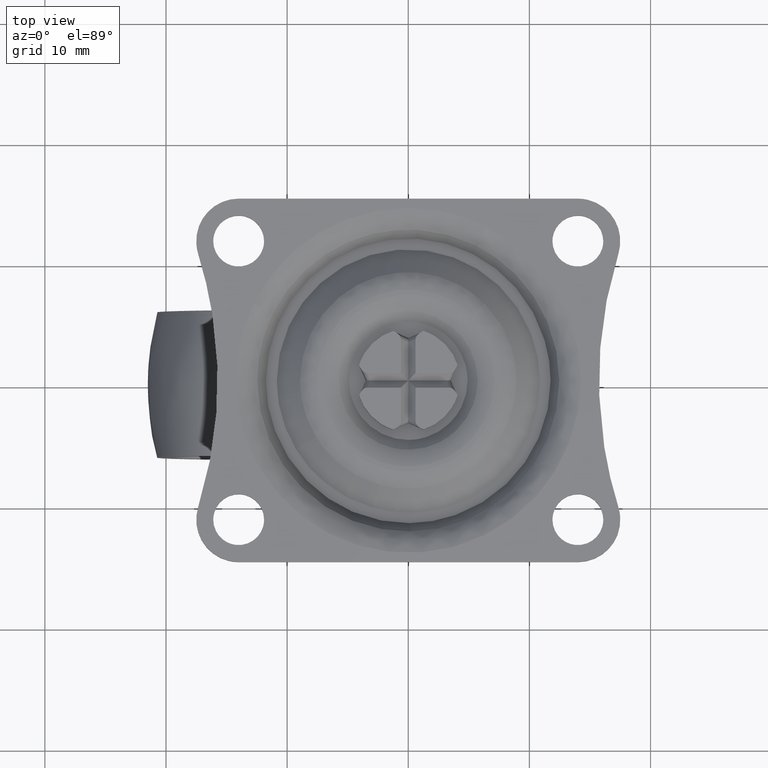
[diagram: clean part render]
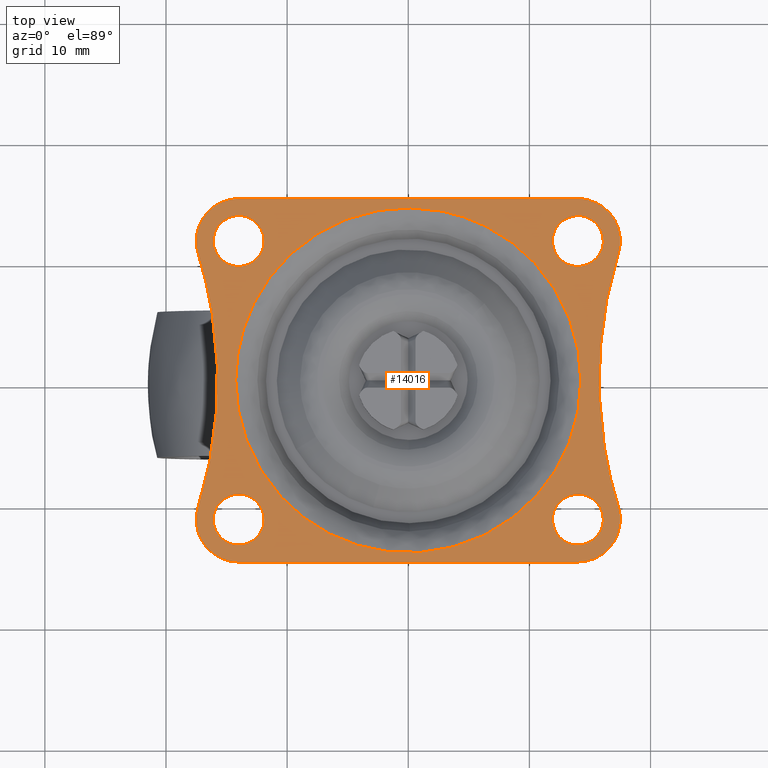
[diagram: same view with one face highlighted and labeled with its STEP entity id]
A machine part, top view. The second image highlights one B-rep face of the part: STEP entity #14016.
In plain terms, the highlighted face is a freeform B-spline surface patch.
Its self-contained STEP definition (entity closure, byte-faithful):
#8242=CARTESIAN_POINT('',(-14.247871892822980,9.414679994641505,1.419714E-017));
#8243=VERTEX_POINT('',#8242);
#8249=CARTESIAN_POINT('',(-11.900000000000000,11.500000000000000,0.0));
#8250=VERTEX_POINT('',#8249);
#8251=CARTESIAN_POINT('',(-14.247871892822983,9.414679994641505,1.419714E-017));
#8252=CARTESIAN_POINT('',(-14.124370651313258,9.400000000000002,0.0));
#8253=CARTESIAN_POINT('',(-14.0,9.400000000000000,0.0));
#8254=CARTESIAN_POINT('',(-11.900000000000000,9.400000000000000,0.0));
#8255=CARTESIAN_POINT('',(-11.900000000000000,11.500000000000000,0.0));
#8263=(BOUNDED_CURVE()B_SPLINE_CURVE(2,(#8251,#8252,#8253,#8254,#8255),.UNSPECIFIED.,.F.,.U.)B_SPLINE_CURVE_WITH_KNOTS((3,2,3),(0.229562473508547,0.250000000000000,0.500000000000000),.UNSPECIFIED.)CURVE()GEOMETRIC_REPRESENTATION_ITEM()RATIONAL_B_SPLINE_CURVE((0.956026754173975,0.976055948325333,1.0,0.707106781186548,1.0))REPRESENTATION_ITEM(''));
#8264=EDGE_CURVE('',#8243,#8250,#8263,.T.);
#8266=CARTESIAN_POINT('',(-13.871798066932740,13.596083076683231,1.040834E-017));
#8267=VERTEX_POINT('',#8266);
#8268=CARTESIAN_POINT('',(-11.900000000000000,11.500000000000000,0.0));
#8269=CARTESIAN_POINT('',(-11.900000000000000,13.475482740418766,0.0));
#8270=CARTESIAN_POINT('',(-13.871798066932746,13.596083076683225,1.040834E-017));
#8278=(BOUNDED_CURVE()B_SPLINE_CURVE(2,(#8268,#8269,#8270),.UNSPECIFIED.,.F.,.U.)B_SPLINE_CURVE_WITH_KNOTS((3,3),(0.500000000000000,0.739332962234715),.UNSPECIFIED.)CURVE()GEOMETRIC_REPRESENTATION_ITEM()RATIONAL_B_SPLINE_CURVE((1.0,0.719603993291663,0.976072041657657))REPRESENTATION_ITEM(''));
#8279=EDGE_CURVE('',#8250,#8267,#8278,.T.);
#8353=CARTESIAN_POINT('',(-16.100000000000001,11.500000000000000,0.0));
#8354=VERTEX_POINT('',#8353);
#8355=CARTESIAN_POINT('',(-13.871798066932742,13.596083076683222,1.040834E-017));
#8356=CARTESIAN_POINT('',(-13.935839197028780,13.600000000000000,0.0));
#8357=CARTESIAN_POINT('',(-14.0,13.600000000000000,0.0));
#8358=CARTESIAN_POINT('',(-16.100000000000005,13.600000000000003,0.0));
#8359=CARTESIAN_POINT('',(-16.100000000000001,11.500000000000000,0.0));
#8367=(BOUNDED_CURVE()B_SPLINE_CURVE(2,(#8355,#8356,#8357,#8358,#8359),.UNSPECIFIED.,.F.,.U.)B_SPLINE_CURVE_WITH_KNOTS((3,2,3),(0.739332962234715,0.750000000000000,1.0),.UNSPECIFIED.)CURVE()GEOMETRIC_REPRESENTATION_ITEM()RATIONAL_B_SPLINE_CURVE((0.976072041657656,0.987502787894884,1.0,0.707106781186548,1.0))REPRESENTATION_ITEM(''));
#8368=EDGE_CURVE('',#8267,#8354,#8367,.T.);
#8370=CARTESIAN_POINT('',(-16.100000000000001,11.500000000000000,0.0));
#8371=CARTESIAN_POINT('',(-16.100000000000001,9.634833495581004,0.0));
#8372=CARTESIAN_POINT('',(-14.247871892822983,9.414679994641505,1.419714E-017));
#8380=(BOUNDED_CURVE()B_SPLINE_CURVE(2,(#8370,#8371,#8372),.UNSPECIFIED.,.F.,.U.)B_SPLINE_CURVE_WITH_KNOTS((3,3),(0.0,0.229562473508547),.UNSPECIFIED.)CURVE()GEOMETRIC_REPRESENTATION_ITEM()RATIONAL_B_SPLINE_CURVE((1.0,0.731050832861215,0.956026754173975))REPRESENTATION_ITEM(''));
#8381=EDGE_CURVE('',#8354,#8243,#8380,.T.);
#8428=CARTESIAN_POINT('',(13.752128107177020,9.414679994641507,1.419714E-017));
#8429=VERTEX_POINT('',#8428);
#8435=CARTESIAN_POINT('',(16.100000000000001,11.500000000000000,0.0));
#8436=VERTEX_POINT('',#8435);
#8437=CARTESIAN_POINT('',(13.752128107177018,9.414679994641507,1.419714E-017));
#8438=CARTESIAN_POINT('',(13.875629348686745,9.400000000000000,0.0));
#8439=CARTESIAN_POINT('',(14.0,9.400000000000000,0.0));
#8440=CARTESIAN_POINT('',(16.100000000000005,9.400000000000000,0.0));
#8441=CARTESIAN_POINT('',(16.100000000000001,11.500000000000000,0.0));
#8449=(BOUNDED_CURVE()B_SPLINE_CURVE(2,(#8437,#8438,#8439,#8440,#8441),.UNSPECIFIED.,.F.,.U.)B_SPLINE_CURVE_WITH_KNOTS((3,2,3),(0.229562473508547,0.250000000000000,0.500000000000000),.UNSPECIFIED.)CURVE()GEOMETRIC_REPRESENTATION_ITEM()RATIONAL_B_SPLINE_CURVE((0.956026754173975,0.976055948325333,1.0,0.707106781186548,1.0))REPRESENTATION_ITEM(''));
#8450=EDGE_CURVE('',#8429,#8436,#8449,.T.);
#8452=CARTESIAN_POINT('',(14.128201933067260,13.596083076683231,1.040834E-017));
#8453=VERTEX_POINT('',#8452);
#8454=CARTESIAN_POINT('',(16.100000000000001,11.500000000000000,0.0));
#8455=CARTESIAN_POINT('',(16.099999999999998,13.475482740418766,0.0));
#8456=CARTESIAN_POINT('',(14.128201933067258,13.596083076683225,1.040834E-017));
#8464=(BOUNDED_CURVE()B_SPLINE_CURVE(2,(#8454,#8455,#8456),.UNSPECIFIED.,.F.,.U.)B_SPLINE_CURVE_WITH_KNOTS((3,3),(0.500000000000000,0.739332962234715),.UNSPECIFIED.)CURVE()GEOMETRIC_REPRESENTATION_ITEM()RATIONAL_B_SPLINE_CURVE((1.0,0.719603993291663,0.976072041657657))REPRESENTATION_ITEM(''));
#8465=EDGE_CURVE('',#8436,#8453,#8464,.T.);
#8539=CARTESIAN_POINT('',(11.900000000000000,11.500000000000000,0.0));
#8540=VERTEX_POINT('',#8539);
#8541=CARTESIAN_POINT('',(14.128201933067260,13.596083076683227,1.040834E-017));
#8542=CARTESIAN_POINT('',(14.064160802971225,13.600000000000001,0.0));
#8543=CARTESIAN_POINT('',(14.0,13.600000000000000,0.0));
#8544=CARTESIAN_POINT('',(11.900000000000000,13.600000000000003,0.0));
#8545=CARTESIAN_POINT('',(11.900000000000000,11.500000000000000,0.0));
#8553=(BOUNDED_CURVE()B_SPLINE_CURVE(2,(#8541,#8542,#8543,#8544,#8545),.UNSPECIFIED.,.F.,.U.)B_SPLINE_CURVE_WITH_KNOTS((3,2,3),(0.739332962234715,0.750000000000000,1.0),.UNSPECIFIED.)CURVE()GEOMETRIC_REPRESENTATION_ITEM()RATIONAL_B_SPLINE_CURVE((0.976072041657656,0.987502787894884,1.0,0.707106781186548,1.0))REPRESENTATION_ITEM(''));
#8554=EDGE_CURVE('',#8453,#8540,#8553,.T.);
#8556=CARTESIAN_POINT('',(11.900000000000000,11.500000000000000,0.0));
#8557=CARTESIAN_POINT('',(11.900000000000000,9.634833495581006,0.0));
#8558=CARTESIAN_POINT('',(13.752128107177018,9.414679994641507,1.419714E-017));
#8566=(BOUNDED_CURVE()B_SPLINE_CURVE(2,(#8556,#8557,#8558),.UNSPECIFIED.,.F.,.U.)B_SPLINE_CURVE_WITH_KNOTS((3,3),(0.0,0.229562473508547),.UNSPECIFIED.)CURVE()GEOMETRIC_REPRESENTATION_ITEM()RATIONAL_B_SPLINE_CURVE((1.0,0.731050832861215,0.956026754173975))REPRESENTATION_ITEM(''));
#8567=EDGE_CURVE('',#8540,#8429,#8566,.T.);
#8614=CARTESIAN_POINT('',(13.752128107177020,-13.585320005358501,1.419714E-017));
#8615=VERTEX_POINT('',#8614);
#8621=CARTESIAN_POINT('',(16.100000000000001,-11.500000000000000,0.0));
#8622=VERTEX_POINT('',#8621);
#8623=CARTESIAN_POINT('',(13.752128107177027,-13.585320005358499,1.419714E-017));
#8624=CARTESIAN_POINT('',(13.875629348686743,-13.600000000000005,0.0));
#8625=CARTESIAN_POINT('',(14.0,-13.600000000000000,0.0));
#8626=CARTESIAN_POINT('',(16.100000000000005,-13.600000000000003,0.0));
#8627=CARTESIAN_POINT('',(16.100000000000001,-11.500000000000000,0.0));
#8635=(BOUNDED_CURVE()B_SPLINE_CURVE(2,(#8623,#8624,#8625,#8626,#8627),.UNSPECIFIED.,.F.,.U.)B_SPLINE_CURVE_WITH_KNOTS((3,2,3),(0.229562473508547,0.250000000000000,0.500000000000000),.UNSPECIFIED.)CURVE()GEOMETRIC_REPRESENTATION_ITEM()RATIONAL_B_SPLINE_CURVE((0.956026754173975,0.976055948325333,1.0,0.707106781186548,1.0))REPRESENTATION_ITEM(''));
#8636=EDGE_CURVE('',#8615,#8622,#8635,.T.);
#8638=CARTESIAN_POINT('',(14.128201933067260,-9.403916923316775,1.040834E-017));
#8639=VERTEX_POINT('',#8638);
#8640=CARTESIAN_POINT('',(16.100000000000001,-11.500000000000000,0.0));
#8641=CARTESIAN_POINT('',(16.099999999999998,-9.524517259581238,0.0));
#8642=CARTESIAN_POINT('',(14.128201933067258,-9.403916923316775,1.040834E-017));
#8650=(BOUNDED_CURVE()B_SPLINE_CURVE(2,(#8640,#8641,#8642),.UNSPECIFIED.,.F.,.U.)B_SPLINE_CURVE_WITH_KNOTS((3,3),(0.500000000000000,0.739332962234715),.UNSPECIFIED.)CURVE()GEOMETRIC_REPRESENTATION_ITEM()RATIONAL_B_SPLINE_CURVE((1.0,0.719603993291663,0.976072041657657))REPRESENTATION_ITEM(''));
#8651=EDGE_CURVE('',#8622,#8639,#8650,.T.);
#8725=CARTESIAN_POINT('',(11.900000000000000,-11.500000000000000,0.0));
#8726=VERTEX_POINT('',#8725);
#8727=CARTESIAN_POINT('',(14.128201933067260,-9.403916923316775,1.040834E-017));
#8728=CARTESIAN_POINT('',(14.064160802971225,-9.400000000000000,0.0));
#8729=CARTESIAN_POINT('',(14.0,-9.400000000000000,0.0));
#8730=CARTESIAN_POINT('',(11.900000000000000,-9.400000000000000,0.0));
#8731=CARTESIAN_POINT('',(11.900000000000000,-11.500000000000000,0.0));
#8739=(BOUNDED_CURVE()B_SPLINE_CURVE(2,(#8727,#8728,#8729,#8730,#8731),.UNSPECIFIED.,.F.,.U.)B_SPLINE_CURVE_WITH_KNOTS((3,2,3),(0.739332962234715,0.750000000000000,1.0),.UNSPECIFIED.)CURVE()GEOMETRIC_REPRESENTATION_ITEM()RATIONAL_B_SPLINE_CURVE((0.976072041657656,0.987502787894884,1.0,0.707106781186548,1.0))REPRESENTATION_ITEM(''));
#8740=EDGE_CURVE('',#8639,#8726,#8739,.T.);
#8742=CARTESIAN_POINT('',(11.900000000000000,-11.500000000000000,0.0));
#8743=CARTESIAN_POINT('',(11.900000000000000,-13.365166504418998,0.0));
#8744=CARTESIAN_POINT('',(13.752128107177018,-13.585320005358501,1.419714E-017));
#8752=(BOUNDED_CURVE()B_SPLINE_CURVE(2,(#8742,#8743,#8744),.UNSPECIFIED.,.F.,.U.)B_SPLINE_CURVE_WITH_KNOTS((3,3),(0.0,0.229562473508547),.UNSPECIFIED.)CURVE()GEOMETRIC_REPRESENTATION_ITEM()RATIONAL_B_SPLINE_CURVE((1.0,0.731050832861215,0.956026754173975))REPRESENTATION_ITEM(''));
#8753=EDGE_CURVE('',#8726,#8615,#8752,.T.);
#8990=CARTESIAN_POINT('',(-14.247871892822980,-13.585320005358490,1.419714E-017));
#8991=VERTEX_POINT('',#8990);
#8997=CARTESIAN_POINT('',(-11.900000000000000,-11.500000000000000,0.0));
#8998=VERTEX_POINT('',#8997);
#8999=CARTESIAN_POINT('',(-14.247871892822983,-13.585320005358490,1.419714E-017));
#9000=CARTESIAN_POINT('',(-14.124370651313258,-13.600000000000007,0.0));
#9001=CARTESIAN_POINT('',(-14.0,-13.600000000000000,0.0));
#9002=CARTESIAN_POINT('',(-11.900000000000000,-13.600000000000003,0.0));
#9003=CARTESIAN_POINT('',(-11.900000000000000,-11.500000000000000,0.0));
#9011=(BOUNDED_CURVE()B_SPLINE_CURVE(2,(#8999,#9000,#9001,#9002,#9003),.UNSPECIFIED.,.F.,.U.)B_SPLINE_CURVE_WITH_KNOTS((3,2,3),(0.229562473508547,0.250000000000000,0.500000000000000),.UNSPECIFIED.)CURVE()GEOMETRIC_REPRESENTATION_ITEM()RATIONAL_B_SPLINE_CURVE((0.956026754173975,0.976055948325333,1.0,0.707106781186548,1.0))REPRESENTATION_ITEM(''));
#9012=EDGE_CURVE('',#8991,#8998,#9011,.T.);
#9014=CARTESIAN_POINT('',(-13.871798066932740,-9.403916923316775,1.040834E-017));
#9015=VERTEX_POINT('',#9014);
#9016=CARTESIAN_POINT('',(-11.900000000000000,-11.500000000000000,0.0));
#9017=CARTESIAN_POINT('',(-11.900000000000000,-9.524517259581238,0.0));
#9018=CARTESIAN_POINT('',(-13.871798066932746,-9.403916923316775,1.040834E-017));
#9026=(BOUNDED_CURVE()B_SPLINE_CURVE(2,(#9016,#9017,#9018),.UNSPECIFIED.,.F.,.U.)B_SPLINE_CURVE_WITH_KNOTS((3,3),(0.500000000000000,0.739332962234715),.UNSPECIFIED.)CURVE()GEOMETRIC_REPRESENTATION_ITEM()RATIONAL_B_SPLINE_CURVE((1.0,0.719603993291663,0.976072041657657))REPRESENTATION_ITEM(''));
#9027=EDGE_CURVE('',#8998,#9015,#9026,.T.);
#9101=CARTESIAN_POINT('',(-16.100000000000001,-11.500000000000000,0.0));
#9102=VERTEX_POINT('',#9101);
#9103=CARTESIAN_POINT('',(-13.871798066932739,-9.403916923316775,1.040834E-017));
#9104=CARTESIAN_POINT('',(-13.935839197028786,-9.400000000000000,0.0));
#9105=CARTESIAN_POINT('',(-14.0,-9.400000000000000,0.0));
#9106=CARTESIAN_POINT('',(-16.100000000000005,-9.400000000000000,0.0));
#9107=CARTESIAN_POINT('',(-16.100000000000001,-11.500000000000000,0.0));
#9115=(BOUNDED_CURVE()B_SPLINE_CURVE(2,(#9103,#9104,#9105,#9106,#9107),.UNSPECIFIED.,.F.,.U.)B_SPLINE_CURVE_WITH_KNOTS((3,2,3),(0.739332962234715,0.750000000000000,1.0),.UNSPECIFIED.)CURVE()GEOMETRIC_REPRESENTATION_ITEM()RATIONAL_B_SPLINE_CURVE((0.976072041657656,0.987502787894884,1.0,0.707106781186548,1.0))REPRESENTATION_ITEM(''));
#9116=EDGE_CURVE('',#9015,#9102,#9115,.T.);
#9118=CARTESIAN_POINT('',(-16.100000000000001,-11.500000000000000,0.0));
#9119=CARTESIAN_POINT('',(-16.100000000000001,-13.365166504418998,0.0));
#9120=CARTESIAN_POINT('',(-14.247871892822983,-13.585320005358490,1.419714E-017));
#9128=(BOUNDED_CURVE()B_SPLINE_CURVE(2,(#9118,#9119,#9120),.UNSPECIFIED.,.F.,.U.)B_SPLINE_CURVE_WITH_KNOTS((3,3),(0.0,0.229562473508547),.UNSPECIFIED.)CURVE()GEOMETRIC_REPRESENTATION_ITEM()RATIONAL_B_SPLINE_CURVE((1.0,0.731050832861215,0.956026754173975))REPRESENTATION_ITEM(''));
#9129=EDGE_CURVE('',#9102,#8991,#9128,.T.);
#12411=CARTESIAN_POINT('',(-12.729783475695941,6.385720219210334,-3.676283E-016));
#12412=VERTEX_POINT('',#12411);
#12426=CARTESIAN_POINT('',(-14.241657560078259,0.0,0.0));
#12427=VERTEX_POINT('',#12426);
#12428=CARTESIAN_POINT('',(-14.241657560078259,0.0,0.0));
#12429=CARTESIAN_POINT('',(-14.241657560078258,3.371834694195156,0.0));
#12430=CARTESIAN_POINT('',(-12.729783475695941,6.385720219210334,-3.676283E-016));
#12438=(BOUNDED_CURVE()B_SPLINE_CURVE(2,(#12428,#12429,#12430),.UNSPECIFIED.,.F.,.U.)B_SPLINE_CURVE_WITH_KNOTS((3,3),(0.0,0.076230937884445),.UNSPECIFIED.)CURVE()GEOMETRIC_REPRESENTATION_ITEM()RATIONAL_B_SPLINE_CURVE((1.0,0.910689900919426,0.875845342762571))REPRESENTATION_ITEM(''));
#12439=EDGE_CURVE('',#12427,#12412,#12438,.T.);
#12441=CARTESIAN_POINT('',(14.241657560078259,0.0,0.0));
#12442=VERTEX_POINT('',#12441);
#12443=CARTESIAN_POINT('',(14.241657560078259,0.0,0.0));
#12444=CARTESIAN_POINT('',(14.241657560078265,-14.241657560078265,0.0));
#12445=CARTESIAN_POINT('',(0.0,-14.241657560078259,0.0));
#12446=CARTESIAN_POINT('',(-14.241657560078265,-14.241657560078265,0.0));
#12447=CARTESIAN_POINT('',(-14.241657560078259,0.0,0.0));
#12455=(BOUNDED_CURVE()B_SPLINE_CURVE(2,(#12443,#12444,#12445,#12446,#12447),.UNSPECIFIED.,.F.,.U.)B_SPLINE_CURVE_WITH_KNOTS((3,2,3),(0.500000000000000,0.750000000000000,1.0),.UNSPECIFIED.)CURVE()GEOMETRIC_REPRESENTATION_ITEM()RATIONAL_B_SPLINE_CURVE((1.0,0.707106781186547,1.0,0.707106781186547,1.0))REPRESENTATION_ITEM(''));
#12456=EDGE_CURVE('',#12442,#12427,#12455,.T.);
#12458=CARTESIAN_POINT('',(6.385720219210331,12.729783475695941,-3.676283E-016));
#12459=VERTEX_POINT('',#12458);
#12460=CARTESIAN_POINT('',(6.385720219210331,12.729783475695937,-3.676283E-016));
#12461=CARTESIAN_POINT('',(14.241657560078266,8.788960914724724,0.0));
#12462=CARTESIAN_POINT('',(14.241657560078259,0.0,0.0));
#12470=(BOUNDED_CURVE()B_SPLINE_CURVE(2,(#12460,#12461,#12462),.UNSPECIFIED.,.F.,.U.)B_SPLINE_CURVE_WITH_KNOTS((3,3),(0.326230937884445,0.500000000000000),.UNSPECIFIED.)CURVE()GEOMETRIC_REPRESENTATION_ITEM()RATIONAL_B_SPLINE_CURVE((0.875845342762571,0.796416880267122,1.0))REPRESENTATION_ITEM(''));
#12471=EDGE_CURVE('',#12459,#12442,#12470,.T.);
#12508=CARTESIAN_POINT('',(-12.729783475695941,6.385720219210334,-3.676283E-016));
#12509=CARTESIAN_POINT('',(-8.788960914724720,14.241657560078266,0.0));
#12510=CARTESIAN_POINT('',(0.0,14.241657560078259,0.0));
#12511=CARTESIAN_POINT('',(3.371834694195165,14.241657560078261,0.0));
#12512=CARTESIAN_POINT('',(6.385720219210331,12.729783475695941,-3.676283E-016));
#12520=(BOUNDED_CURVE()B_SPLINE_CURVE(2,(#12508,#12509,#12510,#12511,#12512),.UNSPECIFIED.,.F.,.U.)B_SPLINE_CURVE_WITH_KNOTS((3,2,3),(0.076230937884445,0.250000000000000,0.326230937884446),.UNSPECIFIED.)CURVE()GEOMETRIC_REPRESENTATION_ITEM()RATIONAL_B_SPLINE_CURVE((0.875845342762571,0.796416880267122,1.0,0.910689900919426,0.875845342762571))REPRESENTATION_ITEM(''));
#12521=EDGE_CURVE('',#12412,#12459,#12520,.T.);
#13646=CARTESIAN_POINT('',(17.340213209119550,-10.454545210148620,0.0));
#13647=VERTEX_POINT('',#13646);
#13653=CARTESIAN_POINT('',(14.0,-15.0,0.0));
#13654=VERTEX_POINT('',#13653);
#13655=CARTESIAN_POINT('',(14.0,-15.0,0.0));
#13656=CARTESIAN_POINT('',(15.771421626596243,-15.000000000000005,0.0));
#13657=CARTESIAN_POINT('',(16.820380449910960,-13.572547735942431,0.0));
#13658=CARTESIAN_POINT('',(17.869339273225670,-12.145095471884854,0.0));
#13659=CARTESIAN_POINT('',(17.340213209119561,-10.454545210148620,0.0));
#13667=(BOUNDED_CURVE()B_SPLINE_CURVE(2,(#13655,#13656,#13657,#13658,#13659),.UNSPECIFIED.,.F.,.U.)B_SPLINE_CURVE_WITH_KNOTS((3,2,3),(0.0,0.500000000000000,1.0),.UNSPECIFIED.)CURVE()GEOMETRIC_REPRESENTATION_ITEM()RATIONAL_B_SPLINE_CURVE((1.0,0.892232171574067,1.0,0.892232171574067,1.0))REPRESENTATION_ITEM(''));
#13668=EDGE_CURVE('',#13654,#13647,#13667,.T.);
#13685=CARTESIAN_POINT('',(-14.000003054326200,-14.999999999998661,0.0));
#13686=VERTEX_POINT('',#13685);
#13687=CARTESIAN_POINT('',(-14.000003054326200,-14.999999999998661,0.0));
#13688=CARTESIAN_POINT('',(14.0,-15.0,0.0));
#13689=QUASI_UNIFORM_CURVE('',1,(#13687,#13688),.UNSPECIFIED.,.F.,.U.);
#13690=EDGE_CURVE('',#13686,#13654,#13689,.T.);
#13716=CARTESIAN_POINT('',(-17.340214993140449,-10.454544972980059,0.0));
#13717=VERTEX_POINT('',#13716);
#13718=CARTESIAN_POINT('',(-17.340214993140449,-10.454544972980059,0.0));
#13719=CARTESIAN_POINT('',(-17.869340279186048,-12.145094372304857,0.0));
#13720=CARTESIAN_POINT('',(-16.820382109695249,-13.572546363970019,0.0));
#13721=CARTESIAN_POINT('',(-15.771423940204448,-14.999998355635187,0.0));
#13722=CARTESIAN_POINT('',(-14.000003054326200,-14.999999999998661,0.0));
#13730=(BOUNDED_CURVE()B_SPLINE_CURVE(2,(#13718,#13719,#13720,#13721,#13722),.UNSPECIFIED.,.F.,.U.)B_SPLINE_CURVE_WITH_KNOTS((3,2,3),(0.0,0.500000000000000,1.0),.UNSPECIFIED.)CURVE()GEOMETRIC_REPRESENTATION_ITEM()RATIONAL_B_SPLINE_CURVE((1.0,0.892232279980720,1.0,0.892232279980720,1.0))REPRESENTATION_ITEM(''));
#13731=EDGE_CURVE('',#13717,#13686,#13730,.T.);
#13756=CARTESIAN_POINT('',(-17.340213774764550,10.454547017378040,0.0));
#13757=VERTEX_POINT('',#13756);
#13758=CARTESIAN_POINT('',(-17.340214993140449,-10.454544972980059,0.0));
#13759=CARTESIAN_POINT('',(-14.068042298999160,0.000001096390073,0.0));
#13760=CARTESIAN_POINT('',(-17.340213774764550,10.454547017378040,0.0));
#13768=(BOUNDED_CURVE()B_SPLINE_CURVE(2,(#13758,#13759,#13760),.UNSPECIFIED.,.F.,.U.)CURVE()GEOMETRIC_REPRESENTATION_ITEM()QUASI_UNIFORM_CURVE()RATIONAL_B_SPLINE_CURVE((1.0,0.954346650566289,1.0))REPRESENTATION_ITEM(''));
#13769=EDGE_CURVE('',#13717,#13757,#13768,.T.);
#13796=CARTESIAN_POINT('',(-14.0,15.0,0.0));
#13797=VERTEX_POINT('',#13796);
#13798=CARTESIAN_POINT('',(-14.0,15.0,0.0));
#13799=CARTESIAN_POINT('',(-15.771421031905295,15.000000000000002,0.0));
#13800=CARTESIAN_POINT('',(-16.820379889232729,13.572548498928690,0.0));
#13801=CARTESIAN_POINT('',(-17.869338746560171,12.145096997857383,0.0));
#13802=CARTESIAN_POINT('',(-17.340213774764550,10.454547017378040,0.0));
#13810=(BOUNDED_CURVE()B_SPLINE_CURVE(2,(#13798,#13799,#13800,#13801,#13802),.UNSPECIFIED.,.F.,.U.)B_SPLINE_CURVE_WITH_KNOTS((3,2,3),(0.0,0.500000000000000,1.0),.UNSPECIFIED.)CURVE()GEOMETRIC_REPRESENTATION_ITEM()RATIONAL_B_SPLINE_CURVE((1.0,0.892232232655721,1.0,0.892232232655721,1.0))REPRESENTATION_ITEM(''));
#13811=EDGE_CURVE('',#13797,#13757,#13810,.T.);
#13828=CARTESIAN_POINT('',(14.0,15.0,0.0));
#13829=VERTEX_POINT('',#13828);
#13830=CARTESIAN_POINT('',(14.0,15.0,0.0));
#13831=CARTESIAN_POINT('',(-14.0,15.0,0.0));
#13832=QUASI_UNIFORM_CURVE('',1,(#13830,#13831),.UNSPECIFIED.,.F.,.U.);
#13833=EDGE_CURVE('',#13829,#13797,#13832,.T.);
#13859=CARTESIAN_POINT('',(17.340213300685949,10.454545502701979,0.0));
#13860=VERTEX_POINT('',#13859);
#13861=CARTESIAN_POINT('',(17.340213300685949,10.454545502701979,0.0));
#13862=CARTESIAN_POINT('',(17.869339187969359,12.145095718908532,0.0));
#13863=CARTESIAN_POINT('',(16.820380359148661,13.572547859454270,0.0));
#13864=CARTESIAN_POINT('',(15.771421530327972,15.0,0.0));
#13865=CARTESIAN_POINT('',(14.0,15.0,0.0));
#13873=(BOUNDED_CURVE()B_SPLINE_CURVE(2,(#13861,#13862,#13863,#13864,#13865),.UNSPECIFIED.,.F.,.U.)B_SPLINE_CURVE_WITH_KNOTS((3,2,3),(0.0,0.500000000000000,1.0),.UNSPECIFIED.)CURVE()GEOMETRIC_REPRESENTATION_ITEM()RATIONAL_B_SPLINE_CURVE((1.0,0.892232181461935,1.0,0.892232181461935,1.0))REPRESENTATION_ITEM(''));
#13874=EDGE_CURVE('',#13860,#13829,#13873,.T.);
#13899=CARTESIAN_POINT('',(17.340213300685939,10.454545502701990,0.0));
#13900=CARTESIAN_POINT('',(14.068045402901076,0.000000160606372,0.0));
#13901=CARTESIAN_POINT('',(17.340213209119550,-10.454545210148620,0.0));
#13909=(BOUNDED_CURVE()B_SPLINE_CURVE(2,(#13899,#13900,#13901),.UNSPECIFIED.,.F.,.U.)CURVE()GEOMETRIC_REPRESENTATION_ITEM()QUASI_UNIFORM_CURVE()RATIONAL_B_SPLINE_CURVE((1.0,0.954346757671776,1.0))REPRESENTATION_ITEM(''));
#13910=EDGE_CURVE('',#13860,#13647,#13909,.T.);
#13971=CARTESIAN_POINT('',(-19.248094485321630,16.498499941854181,0.0));
#13972=CARTESIAN_POINT('',(19.248091611416001,16.498499941854181,0.0));
#13973=CARTESIAN_POINT('',(-19.248094485321630,-16.498500746516889,0.0));
#13974=CARTESIAN_POINT('',(19.248091611416001,-16.498500746516889,0.0));
#13975=B_SPLINE_SURFACE_WITH_KNOTS('',1,1,((#13971,#13973),(#13972,#13974)),.UNSPECIFIED.,.F.,.F.,.U.,(2,2),(2,2),(0.0,38.496186096737631),(0.0,32.997000688371060),.UNSPECIFIED.);
#13976=ORIENTED_EDGE('',*,*,#13910,.F.);
#13977=ORIENTED_EDGE('',*,*,#13874,.T.);
#13978=ORIENTED_EDGE('',*,*,#13833,.T.);
#13979=ORIENTED_EDGE('',*,*,#13811,.T.);
#13980=ORIENTED_EDGE('',*,*,#13769,.F.);
#13981=ORIENTED_EDGE('',*,*,#13731,.T.);
#13982=ORIENTED_EDGE('',*,*,#13690,.T.);
#13983=ORIENTED_EDGE('',*,*,#13668,.T.);
#13984=EDGE_LOOP('',(#13976,#13977,#13978,#13979,#13980,#13981,#13982,#13983));
#13985=FACE_OUTER_BOUND('',#13984,.T.);
#13986=ORIENTED_EDGE('',*,*,#12456,.T.);
#13987=ORIENTED_EDGE('',*,*,#12439,.T.);
#13988=ORIENTED_EDGE('',*,*,#12521,.T.);
#13989=ORIENTED_EDGE('',*,*,#12471,.T.);
#13990=EDGE_LOOP('',(#13986,#13987,#13988,#13989));
#13991=FACE_BOUND('',#13990,.T.);
#13992=ORIENTED_EDGE('',*,*,#9027,.F.);
#13993=ORIENTED_EDGE('',*,*,#9012,.F.);
#13994=ORIENTED_EDGE('',*,*,#9129,.F.);
#13995=ORIENTED_EDGE('',*,*,#9116,.F.);
#13996=EDGE_LOOP('',(#13992,#13993,#13994,#13995));
#13997=FACE_BOUND('',#13996,.T.);
#13998=ORIENTED_EDGE('',*,*,#8651,.F.);
#13999=ORIENTED_EDGE('',*,*,#8636,.F.);
#14000=ORIENTED_EDGE('',*,*,#8753,.F.);
#14001=ORIENTED_EDGE('',*,*,#8740,.F.);
#14002=EDGE_LOOP('',(#13998,#13999,#14000,#14001));
#14003=FACE_BOUND('',#14002,.T.);
#14004=ORIENTED_EDGE('',*,*,#8465,.F.);
#14005=ORIENTED_EDGE('',*,*,#8450,.F.);
#14006=ORIENTED_EDGE('',*,*,#8567,.F.);
#14007=ORIENTED_EDGE('',*,*,#8554,.F.);
#14008=EDGE_LOOP('',(#14004,#14005,#14006,#14007));
#14009=FACE_BOUND('',#14008,.T.);
#14010=ORIENTED_EDGE('',*,*,#8279,.F.);
#14011=ORIENTED_EDGE('',*,*,#8264,.F.);
#14012=ORIENTED_EDGE('',*,*,#8381,.F.);
#14013=ORIENTED_EDGE('',*,*,#8368,.F.);
#14014=EDGE_LOOP('',(#14010,#14011,#14012,#14013));
#14015=FACE_BOUND('',#14014,.T.);
#14016=ADVANCED_FACE('',(#13985,#13991,#13997,#14003,#14009,#14015),#13975,.F.);